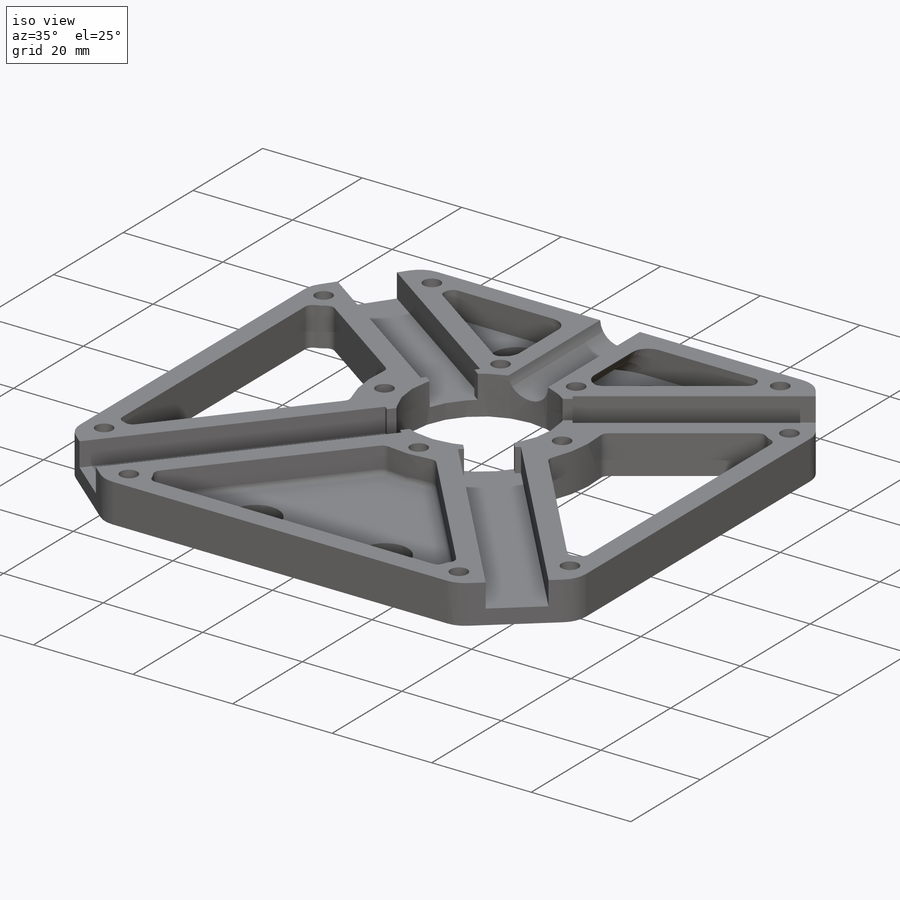
[diagram: iso view]
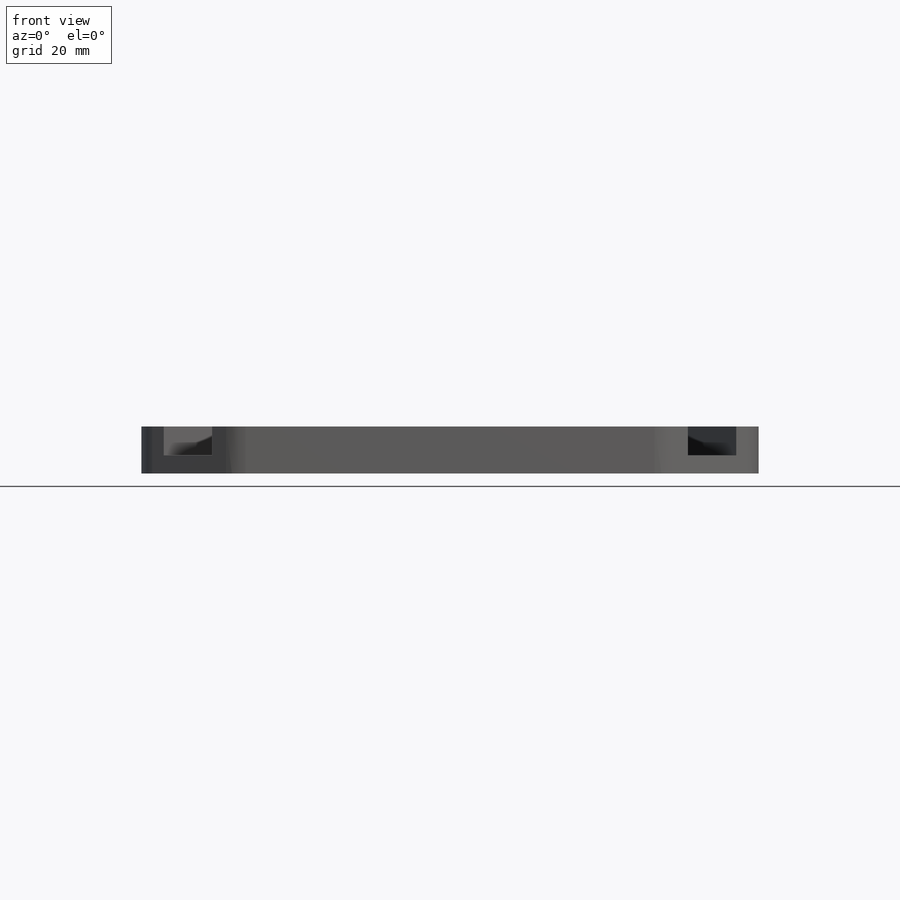
[diagram: front view]
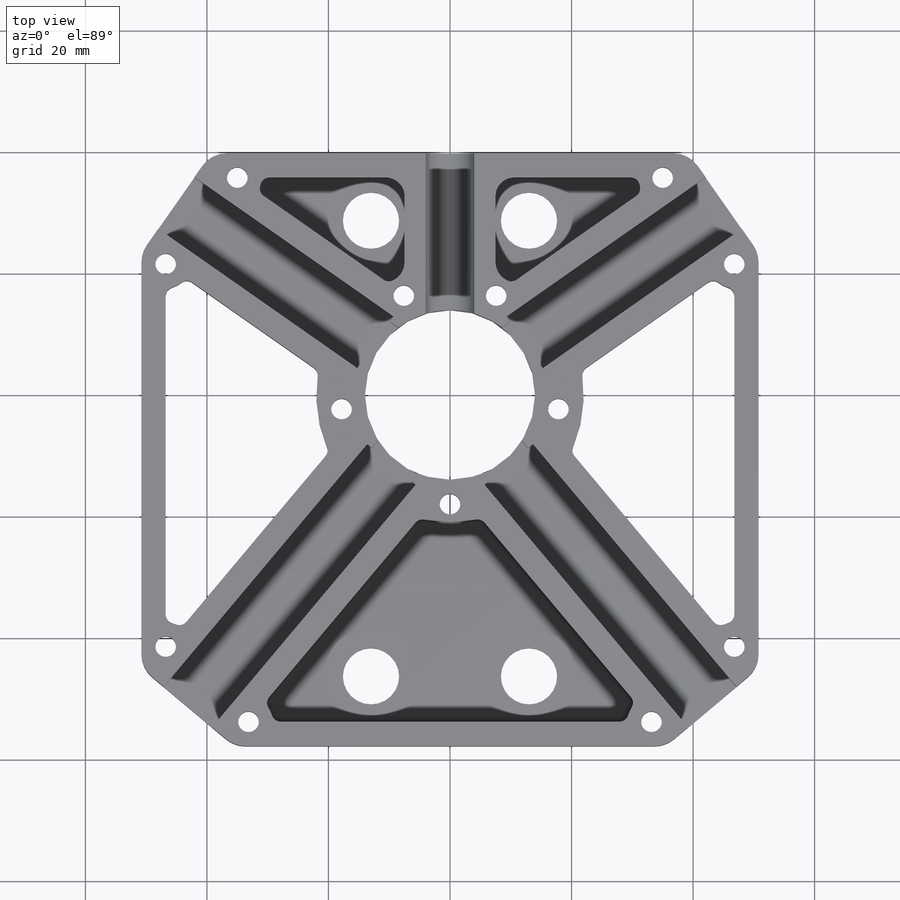
[diagram: top view]
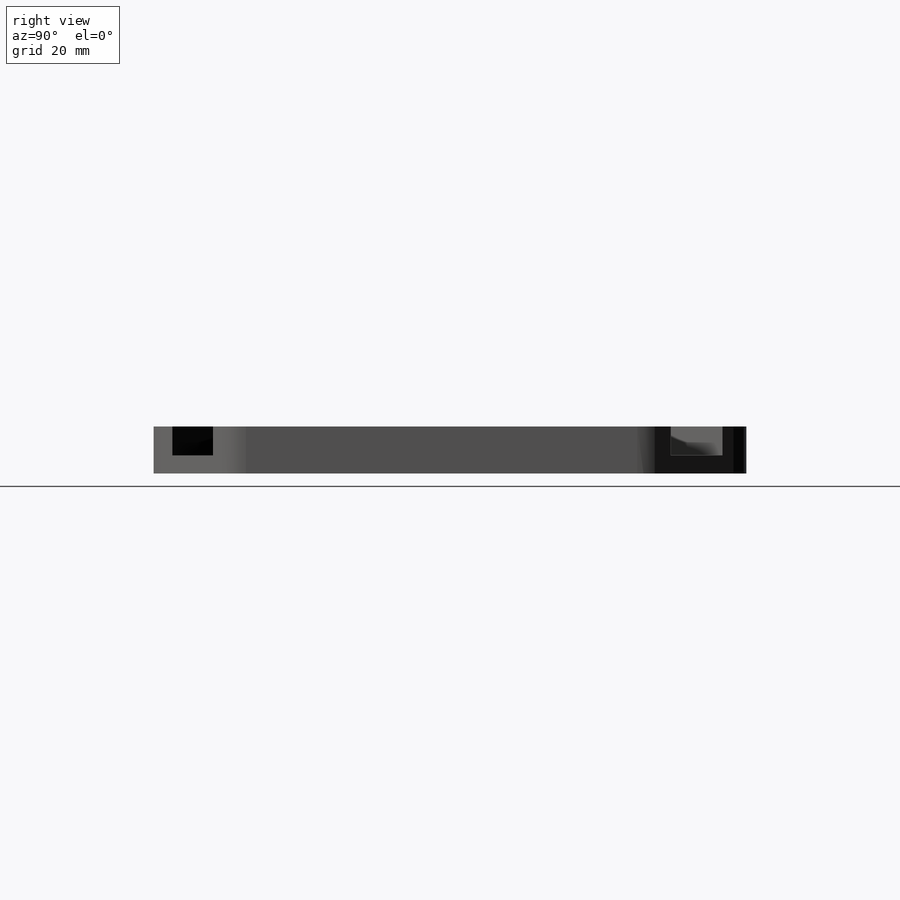
[diagram: right view]
SOLIDWORKS PART (.sldprt)
format: sldprt  version: not decoded by parser v0  size: 1,714,688 bytes
history: native  units: mm
features: sketch x17, cut_extrude x9, extrude x5, fillet x4, plane x2, material x1, mirror x1, hole x1, delete_body x1 (+13 scaffold rows collapsed)
feature tree (54):
  scaffold x13  (default folders/planes/origin — collapsed)
  material  "Material <not specified>"
  sketch  "Layout Sketch"  dims[c1.D3=30.0mm c1.D5=430.0mm c1.D6=254.0mm c1.D1=~57.366022mm c2.D1=55.0deg c2.D2=~51.258161mm c3.D2=40.0deg c3.D4=200.0mm c3.D7=87.0mm c3.D8=70.0mm c3.D9=180.0mm]
  plane  "Plane1"
  sketch  "Sketch2"  dims[D2=8.0mm D1=10.0mm]
  extrude  "Boss-Extrude2"  [1 undecoded]
  plane  "Plane2"
  sketch  "Sketch4"  dims[D2=8.0mm D1=10.0mm]
  extrude  "Boss-Extrude1"  [1 undecoded]
  mirror  "Mirror1"
  sketch  "Sketch5"  dims[D1=20.0mm D2=40.0mm D3=~101.578254mm]
  extrude  "Boss-Extrude3"  Depth=3mm
  sketch  "Sketch7"  dims[D1=0.2mm D2=0.2mm]
  cut_extrude  "Cut-Extrude1"  [1 undecoded]
  sketch  "Sketch8"  dims[D5=28.0mm D1=1.0mm D2=1.0mm D3=1.0mm D4=1.0mm]
  cut_extrude  "Cut-Extrude2"  [1 undecoded]
  sketch  "Sketch14"  dims[D4=8.0mm D1=4.0mm D2=4.0mm D3=4.0mm]
  cut_extrude  "Cut-Extrude4"  Depth=2.5mm
  sketch  "Sketch15"  dims[D1=7.0mm]
  extrude  "Boss-Extrude7"  [1 undecoded]
  sketch  "Sketch10"  dims[D1=15.0mm D2=5.0mm]
  extrude  "Boss-Extrude8"  [1 undecoded]
  sketch  "Sketch11"  dims[D1=8.0mm]
  cut_extrude  "Cut-Extrude3"  [1 undecoded]
  hole  "M3 Clearance Hole2"  Diameter=3.4mm Depth=7.75mm
  sketch  "Sketch17"
  sketch  "Sketch16"  dims[hole-wizard template sketch: 60 standard entries collapsed; hole parameters kept: c18.Thru Hole Depth=7.75mm]
  fillet  "Fillet1"  Radius=1.5mm
  sketch  "Sketch18"  dims[D1=0.0mm D2=0.0mm]
  cut_extrude  "Cut-Extrude5"  [1 undecoded]
  fillet  "Fillet2"  Radius=3mm
  fillet  "Fillet3"  Radius=1mm
  sketch  "Sketch19"  dims[D1=28.0mm]
  cut_extrude  "Cut-Extrude6"  [1 undecoded]
  fillet  "Fillet5"  Radius=5mm
  sketch  "Sketch21"  dims[D1=5.7mm D2=~3.779351mm]
  cut_extrude  "Cut-Extrude8"  Depth=2.5mm
  sketch  "Sketch22"  dims[D1=6.0mm]
  cut_extrude  "Cut-Extrude9"  Depth=2mm
  sketch  "Sketch23"  dims[c1.D1=9.25mm c1.D2=11.0mm c1.D3=11.0mm c1.D4=26.0mm c2.D2=75.0mm]
  cut_extrude  "Cut-Extrude10"  [1 undecoded]
  delete_body  "Body-Delete1"
decode coverage: 25 of 38 modeling features carry decoded parameters
note: ~ marks probable driven/reference dimensions
note: 10 parameter values undecoded
summary: no parameter record found for 10 features
note: suppression state not decoded; provenance and decode notes live in map.json
